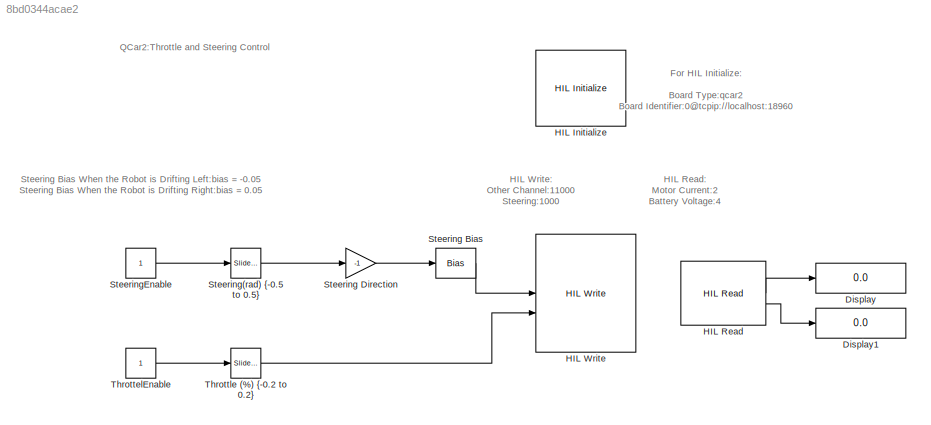
MODEL slx_8bd0344acae2
KIND model
CONFIG AbsTol = auto
CONFIG EnableMultiTasking = on
CONFIG FixedStep = 0.002
CONFIG MaxStep = auto
CONFIG MinStep = auto
CONFIG RelTol = 1e-3
CONFIG SampleTimeConstraint = Unconstrained
CONFIG SolverName = FixedStepDiscrete
CONFIG StartTime = 0.0
CONFIG StopTime = inf
BLOCK [Display] Display
  Decimation = 1
BLOCK [Display] Display1
  Decimation = 1
BLOCK [Reference] HIL Initialize  REF=quarc_library/Data Acquisition/Generic/Configuration/HIL Initialize
  AttributesFormatString = %<object_name> (%<board_type>-%<board_number>)
  SourceBlock = quarc_library/Data Acquisition/Generic/Configuration/HIL Initialize
  SourceProductName = QUARC Targets
  SourceType = HIL Initialize
  UserDataPersistent = on
BLOCK [Reference] HIL Read  REF=quarc_library/Data Acquisition/Generic/Immediate I//O/HIL Read
  AttributesFormatString = (%<object_name>)
  SourceBlock = quarc_library/Data Acquisition/Generic/Immediate I//O/HIL Read
  SourceProductName = QUARC Targets
  SourceType = HIL Read
  UserDataPersistent = on
BLOCK [Reference] HIL Write  REF=quarc_library/Data Acquisition/Generic/Immediate I//O/HIL Write
  AttributesFormatString = (%<object_name>)
  SourceBlock = quarc_library/Data Acquisition/Generic/Immediate I//O/HIL Write
  SourceProductName = QUARC Targets
  SourceType = HIL Write
  UserDataPersistent = on
BLOCK [Bias] Steering Bias
  Bias = -0.05
  SaturateOnIntegerOverflow = off
BLOCK [Gain] Steering Direction
  Gain = -1
BLOCK [Reference] Steering(rad) {-0.5 to 0.5}   REF=simulink/Math
Operations/Slider
Gain
  SourceBlock = simulink/Math\nOperations/Slider\nGain
  SourceType = Slider Gain
BLOCK [Constant] SteeringEnable
BLOCK [Constant] ThrottelEnable
BLOCK [Reference] Throttle (%) {-0.2 to 0.2}  REF=simulink/Math
Operations/Slider
Gain
  SourceBlock = simulink/Math\nOperations/Slider\nGain
  SourceType = Slider Gain
ANNOTATION (root): Steering Bias When the Robot is Drifting Left: bias = -0.05 Steering Bias When the Robot is Drifting Right: bias = 0.05
ANNOTATION (root): For HIL Initialize: Board Type:qcar2 Board Identifier:0@tcpip://localhost:18960
ANNOTATION (root): HIL Read: Motor Current:2 Battery Voltage:4
ANNOTATION (root): HIL Write: Other Channel:11000 Steering:1000
ANNOTATION (root): QCar2:Throttle and Steering Control
LINE HIL Read:1 -> Display:1
LINE HIL Read:2 -> Display1:1
LINE Steering Bias:1 -> HIL Write:1
LINE Steering Direction:1 -> Steering Bias:1
LINE Steering(rad) {-0.5 to 0.5} :1 -> Steering Direction:1
LINE SteeringEnable:1 -> Steering(rad) {-0.5 to 0.5} :1
LINE ThrottelEnable:1 -> Throttle (%) {-0.2 to 0.2}:1
LINE Throttle (%) {-0.2 to 0.2}:1 -> HIL Write:2
